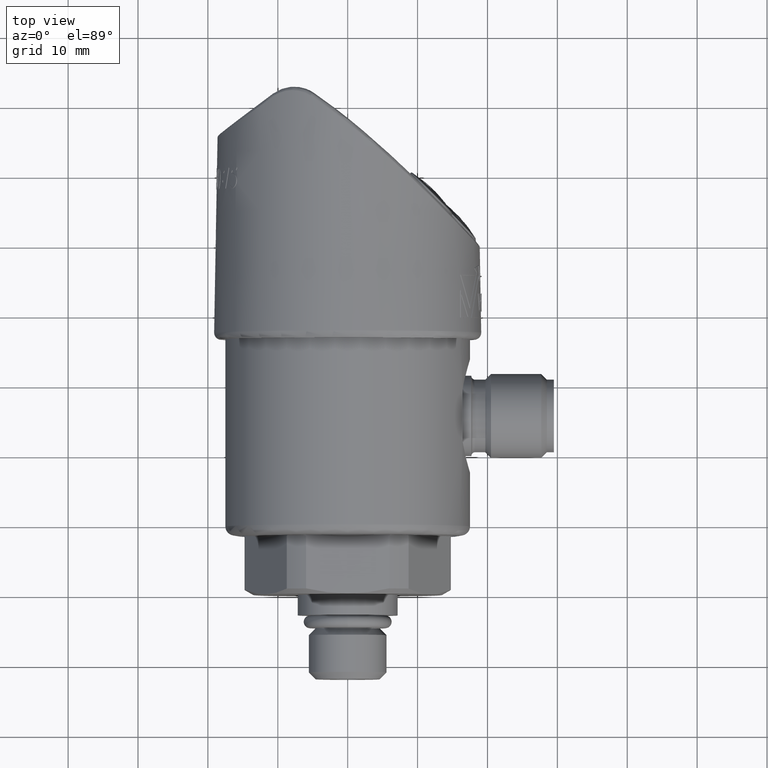
[diagram: clean part render]
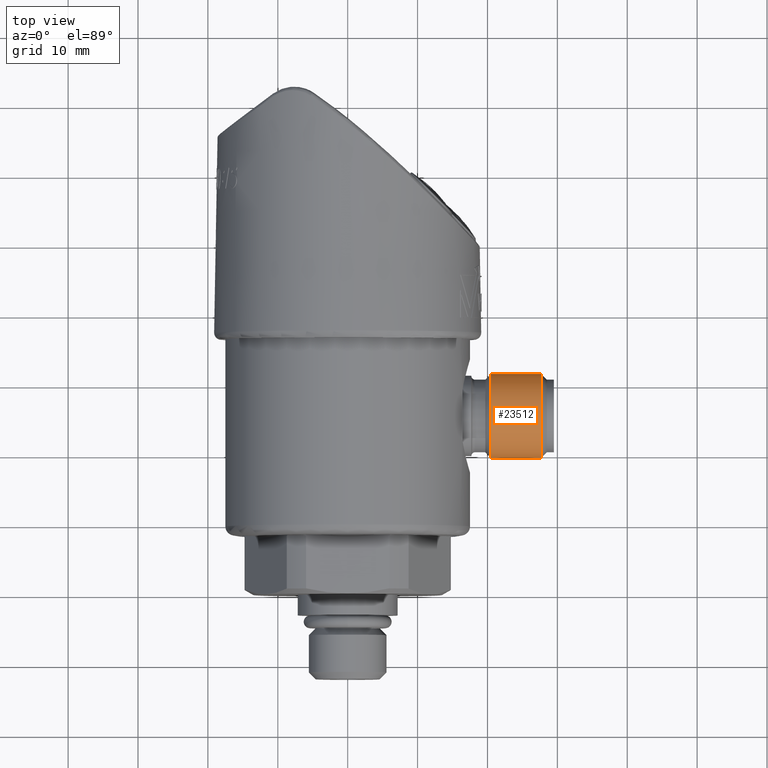
[diagram: same view with one face highlighted and labeled with its STEP entity id]
A machine part, top view. The second image highlights one B-rep face of the part: STEP entity #23512.
In plain terms, the highlighted cylindrical surface (partial cylindrical patch) has radius 6 mm, axis along (-1, 0, 0).
Its self-contained STEP definition (entity closure, byte-faithful):
#5023=CARTESIAN_POINT('',(8.070866141732E-1,1.009055118110E0,0.E0));
#5024=DIRECTION('',(1.E0,0.E0,0.E0));
#5025=DIRECTION('',(0.E0,1.E0,0.E0));
#5026=AXIS2_PLACEMENT_3D('',#5023,#5024,#5025);
#5042=DIRECTION('',(-1.E0,0.E0,0.E0));
#5043=VECTOR('',#5042,2.834645669291E-1);
#5044=CARTESIAN_POINT('',(1.090551181102E0,1.245275590551E0,0.E0));
#5045=LINE('',#5044,#5043);
#5046=DIRECTION('',(-1.E0,0.E0,0.E0));
#5047=VECTOR('',#5046,2.834645669291E-1);
#5048=CARTESIAN_POINT('',(1.090551181102E0,7.728346456693E-1,0.E0));
#5049=LINE('',#5048,#5047);
#5054=CARTESIAN_POINT('',(1.090551181102E0,1.009055118110E0,0.E0));
#5055=DIRECTION('',(-1.E0,0.E0,0.E0));
#5056=DIRECTION('',(0.E0,-1.E0,0.E0));
#5057=AXIS2_PLACEMENT_3D('',#5054,#5055,#5056);
#18936=CARTESIAN_POINT('',(8.070866141732E-1,7.728346456693E-1,0.E0));
#18937=VERTEX_POINT('',#18936);
#18938=CARTESIAN_POINT('',(8.070866141732E-1,1.245275590551E0,0.E0));
#18939=VERTEX_POINT('',#18938);
#18940=CARTESIAN_POINT('',(1.090551181102E0,7.728346456693E-1,0.E0));
#18941=VERTEX_POINT('',#18940);
#18942=CARTESIAN_POINT('',(1.090551181102E0,1.245275590551E0,0.E0));
#18943=VERTEX_POINT('',#18942);
#23500=CARTESIAN_POINT('',(1.189566929134E0,1.009055118110E0,0.E0));
#23501=DIRECTION('',(-1.E0,0.E0,0.E0));
#23502=DIRECTION('',(0.E0,1.E0,0.E0));
#23503=AXIS2_PLACEMENT_3D('',#23500,#23501,#23502);
#23504=CYLINDRICAL_SURFACE('',#23503,2.362204724409E-1);
#23505=ORIENTED_EDGE('',*,*,#23490,.T.);
#23506=ORIENTED_EDGE('',*,*,#23467,.F.);
#23507=ORIENTED_EDGE('',*,*,#23494,.F.);
#23509=ORIENTED_EDGE('',*,*,#23508,.F.);
#23510=EDGE_LOOP('',(#23505,#23506,#23507,#23509));
#23511=FACE_OUTER_BOUND('',#23510,.F.);
#5027=CIRCLE('',#5026,2.362204724409E-1);
#5058=CIRCLE('',#5057,2.362204724409E-1);
#23467=EDGE_CURVE('',#18939,#18937,#5027,.T.);
#23490=EDGE_CURVE('',#18941,#18937,#5049,.T.);
#23494=EDGE_CURVE('',#18943,#18939,#5045,.T.);
#23508=EDGE_CURVE('',#18941,#18943,#5058,.T.);
#23512=ADVANCED_FACE('',(#23511),#23504,.T.);